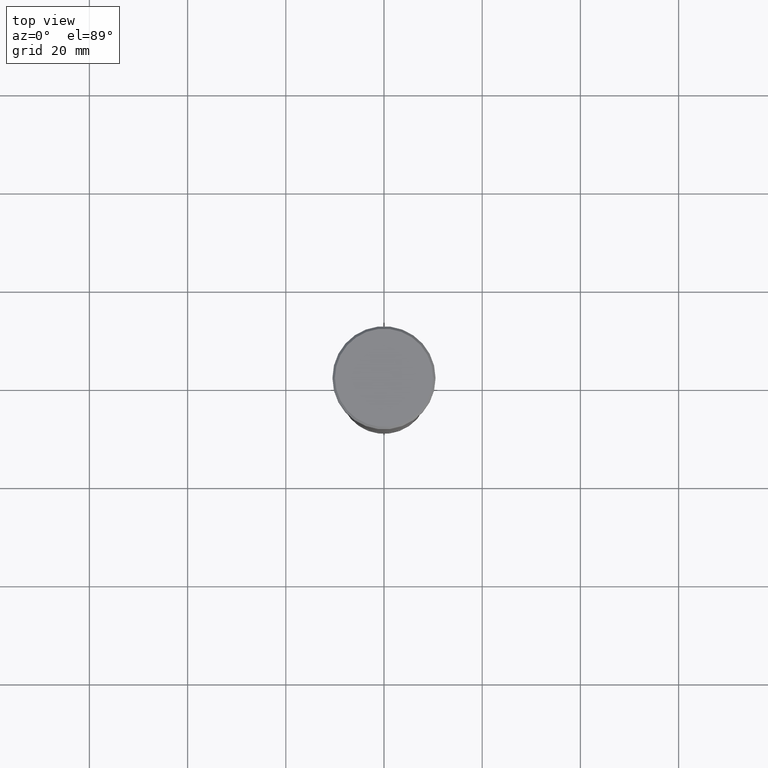
[diagram: clean part render]
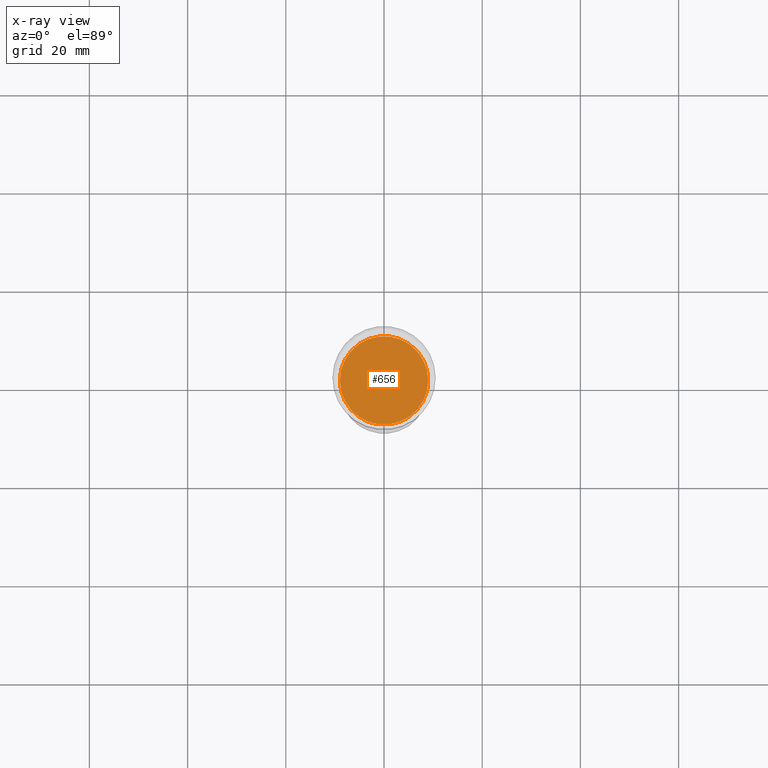
[diagram: x-ray — body ghosted, one internal face saturated and labeled with its STEP entity id]
A machine part, top view, then the same camera in x-ray: the body is ghosted and one INTERNAL B-rep face — a face not visible from any outside direction — is saturated and labeled: STEP entity #656.
In plain terms, the highlighted planar face has unit normal (0, 0, -1).
Its self-contained STEP definition (entity closure, byte-faithful):
#39 = EDGE_LOOP ( 'NONE', ( #514, #839 ) ) ;
#59 = VERTEX_POINT ( 'NONE', #73 ) ;
#73 = CARTESIAN_POINT ( 'NONE',  ( 9.000000000000000000, 0.000000000000000000, -33.00000000000000000 ) ) ;
#173 = PLANE ( 'NONE',  #280 ) ;
#251 = DIRECTION ( 'NONE',  ( -1.000000000000000000, 0.000000000000000000, 0.000000000000000000 ) ) ;
#280 = AXIS2_PLACEMENT_3D ( 'NONE', #519, #434, #907 ) ;
#434 = DIRECTION ( 'NONE',  ( 0.000000000000000000, 0.000000000000000000, -1.000000000000000000 ) ) ;
#493 = CARTESIAN_POINT ( 'NONE',  ( 0.000000000000000000, 0.000000000000000000, -33.00000000000000000 ) ) ;
#514 = ORIENTED_EDGE ( 'NONE', *, *, #719, .T. ) ;
#519 = CARTESIAN_POINT ( 'NONE',  ( 0.000000000000000000, 0.000000000000000000, -33.00000000000000000 ) ) ;
#591 = DIRECTION ( 'NONE',  ( -1.000000000000000000, 0.000000000000000000, 0.000000000000000000 ) ) ;
#617 = CARTESIAN_POINT ( 'NONE',  ( 0.000000000000000000, 0.000000000000000000, -33.00000000000000000 ) ) ;
#656 = ADVANCED_FACE ( 'NONE', ( #961 ), #173, .T. ) ;
#658 = DIRECTION ( 'NONE',  ( 0.000000000000000000, 0.000000000000000000, -1.000000000000000000 ) ) ;
#719 = EDGE_CURVE ( 'NONE', #59, #758, #903, .T. ) ;
#748 = CARTESIAN_POINT ( 'NONE',  ( -9.000000000000000000, 1.102182119232617714E-15, -33.00000000000000000 ) ) ;
#758 = VERTEX_POINT ( 'NONE', #748 ) ;
#826 = CIRCLE ( 'NONE', #981, 9.000000000000000000 ) ;
#839 = ORIENTED_EDGE ( 'NONE', *, *, #874, .T. ) ;
#871 = DIRECTION ( 'NONE',  ( 0.000000000000000000, 0.000000000000000000, -1.000000000000000000 ) ) ;
#874 = EDGE_CURVE ( 'NONE', #758, #59, #826, .T. ) ;
#903 = CIRCLE ( 'NONE', #1120, 9.000000000000000000 ) ;
#907 = DIRECTION ( 'NONE',  ( -1.000000000000000000, 0.000000000000000000, -0.000000000000000000 ) ) ;
#961 = FACE_OUTER_BOUND ( 'NONE', #39, .T. ) ;
#981 = AXIS2_PLACEMENT_3D ( 'NONE', #617, #871, #251 ) ;
#1120 = AXIS2_PLACEMENT_3D ( 'NONE', #493, #658, #591 ) ;